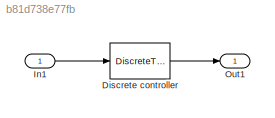
MODEL slx_b81d738e77fb
KIND model
BLOCK [DiscreteTransferFcn] Discrete controller
  Denominator = tf(Cd).den{1}
  InputPortMap = u0
  Numerator = tf(Cd).num{1}
  Ports = [1, 1]
  SampleTime = Ts
BLOCK [Inport] In1
  IconDisplay = Port number
BLOCK [Outport] Out1
  IconDisplay = Port number
LINE Discrete controller:1 -> Out1:1
LINE In1:1 -> Discrete controller:1
